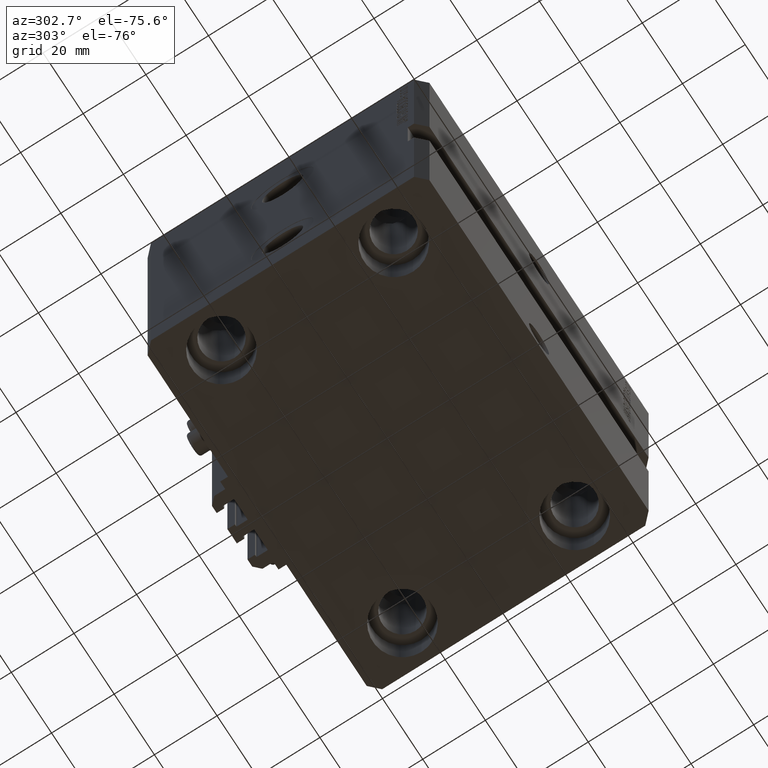
[diagram: clean part render]
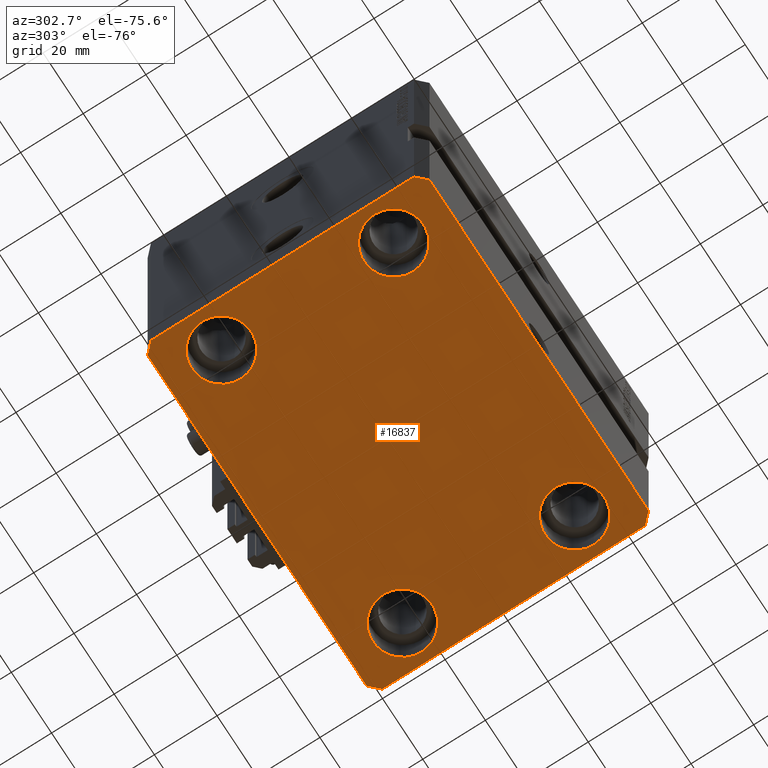
[diagram: same view with one face highlighted and labeled with its STEP entity id]
A machine part, auxiliary view. The second image highlights one B-rep face of the part: STEP entity #16837.
In plain terms, the highlighted planar face has unit normal (0, 0, 1).
Its self-contained STEP definition (entity closure, byte-faithful):
#279 = CARTESIAN_POINT ( 'NONE',  ( -35.50000000000000000, 27.50000000000000355, -105.0000000000000000 ) ) ;
#467 = DIRECTION ( 'NONE',  ( 1.000000000000000000, 0.000000000000000000, -0.000000000000000000 ) ) ;
#576 = CARTESIAN_POINT ( 'NONE',  ( 57.50000000000000711, -41.99999999999998579, -105.0000000000000000 ) ) ;
#726 = DIRECTION ( 'NONE',  ( 0.7071067811865483499, 0.7071067811865466846, 0.000000000000000000 ) ) ;
#1422 = DIRECTION ( 'NONE',  ( 1.000000000000000000, 0.000000000000000000, 0.000000000000000000 ) ) ;
#1718 = CIRCLE ( 'NONE', #31116, 9.500000000000001776 ) ;
#1976 = VECTOR ( 'NONE', #726, 1000.000000000000000 ) ;
#2135 = LINE ( 'NONE', #35731, #8910 ) ;
#2207 = DIRECTION ( 'NONE',  ( -0.000000000000000000, -0.000000000000000000, 1.000000000000000000 ) ) ;
#2256 = CARTESIAN_POINT ( 'NONE',  ( 45.00000000000000000, 27.50000000000001776, -105.0000000000000000 ) ) ;
#2912 = DIRECTION ( 'NONE',  ( -0.7071067811865376918, 0.7071067811865574537, 0.000000000000000000 ) ) ;
#3222 = EDGE_CURVE ( 'NONE', #12543, #41691, #9129, .T. ) ;
#3352 = CARTESIAN_POINT ( 'NONE',  ( 45.00000000000000000, 27.50000000000001776, -105.0000000000000000 ) ) ;
#3983 = CARTESIAN_POINT ( 'NONE',  ( -57.49999999999998579, 42.00000000000000711, -105.0000000000000000 ) ) ;
#4467 = DIRECTION ( 'NONE',  ( -2.478176394252581141E-16, -1.000000000000000000, 0.000000000000000000 ) ) ;
#4506 = LINE ( 'NONE', #46290, #31974 ) ;
#4608 = VERTEX_POINT ( 'NONE', #47887 ) ;
#5038 = VERTEX_POINT ( 'NONE', #30649 ) ;
#5050 = DIRECTION ( 'NONE',  ( -0.000000000000000000, -0.000000000000000000, 1.000000000000000000 ) ) ;
#5614 = DIRECTION ( 'NONE',  ( 6.443258625056715108E-15, 1.000000000000000000, 0.000000000000000000 ) ) ;
#5835 = VERTEX_POINT ( 'NONE', #17986 ) ;
#6090 = DIRECTION ( 'NONE',  ( -0.000000000000000000, -0.000000000000000000, 1.000000000000000000 ) ) ;
#8033 = LINE ( 'NONE', #29281, #13172 ) ;
#8334 = CARTESIAN_POINT ( 'NONE',  ( 54.50000000000058975, 45.00000000000002842, -105.0000000000000000 ) ) ;
#8769 = LINE ( 'NONE', #43355, #29355 ) ;
#8805 = ORIENTED_EDGE ( 'NONE', *, *, #42969, .F. ) ;
#8910 = VECTOR ( 'NONE', #5614, 1000.000000000000000 ) ;
#8913 = CARTESIAN_POINT ( 'NONE',  ( -35.50000000000000000, -27.49999999999999645, -105.0000000000000000 ) ) ;
#8950 = CIRCLE ( 'NONE', #20876, 9.500000000000001776 ) ;
#9129 = CIRCLE ( 'NONE', #21051, 9.500000000000001776 ) ;
#10014 = CARTESIAN_POINT ( 'NONE',  ( -54.50000000000000000, 27.50000000000000355, -105.0000000000000000 ) ) ;
#10202 = FACE_OUTER_BOUND ( 'NONE', #33993, .T. ) ;
#11840 = CARTESIAN_POINT ( 'NONE',  ( -57.49999999999998579, 42.00000000000000711, -105.0000000000000000 ) ) ;
#12201 = DIRECTION ( 'NONE',  ( 1.000000000000000000, 1.273191542001326317E-16, 0.000000000000000000 ) ) ;
#12543 = VERTEX_POINT ( 'NONE', #47386 ) ;
#12824 = EDGE_LOOP ( 'NONE', ( #37345, #42516 ) ) ;
#13172 = VECTOR ( 'NONE', #2912, 999.9999999999998863 ) ;
#13424 = PLANE ( 'NONE',  #38284 ) ;
#13769 = EDGE_LOOP ( 'NONE', ( #26224, #22367 ) ) ;
#13790 = LINE ( 'NONE', #35481, #13846 ) ;
#13846 = VECTOR ( 'NONE', #17038, 1000.000000000000114 ) ;
#14726 = ORIENTED_EDGE ( 'NONE', *, *, #24676, .F. ) ;
#14765 = DIRECTION ( 'NONE',  ( -0.000000000000000000, -0.000000000000000000, 1.000000000000000000 ) ) ;
#15369 = CARTESIAN_POINT ( 'NONE',  ( -45.00000000000000000, 27.50000000000000355, -105.0000000000000000 ) ) ;
#15591 = EDGE_CURVE ( 'NONE', #39990, #5835, #35706, .T. ) ;
#15919 = VECTOR ( 'NONE', #27231, 1000.000000000000000 ) ;
#16047 = EDGE_CURVE ( 'NONE', #22498, #4608, #22320, .T. ) ;
#16276 = EDGE_CURVE ( 'NONE', #46316, #26536, #1718, .T. ) ;
#16837 = ADVANCED_FACE ( 'NONE', ( #17653, #40070, #43796, #47528, #10202 ), #13424, .F. ) ;
#17006 = CARTESIAN_POINT ( 'NONE',  ( 54.50000000000000711, -44.99999999999998579, -105.0000000000000000 ) ) ;
#17036 = DIRECTION ( 'NONE',  ( 1.000000000000000000, 0.000000000000000000, 0.000000000000000000 ) ) ;
#17038 = DIRECTION ( 'NONE',  ( 0.7071067811865491270, -0.7071067811865459074, 0.000000000000000000 ) ) ;
#17064 = CARTESIAN_POINT ( 'NONE',  ( -45.00000000000000000, -27.49999999999999645, -105.0000000000000000 ) ) ;
#17412 = DIRECTION ( 'NONE',  ( -0.000000000000000000, -0.000000000000000000, 1.000000000000000000 ) ) ;
#17653 = FACE_BOUND ( 'NONE', #48306, .T. ) ;
#17880 = EDGE_CURVE ( 'NONE', #4608, #22498, #47806, .T. ) ;
#17984 = ORIENTED_EDGE ( 'NONE', *, *, #29509, .F. ) ;
#17986 = CARTESIAN_POINT ( 'NONE',  ( -54.49999999999999289, 45.00000000000000000, -105.0000000000000000 ) ) ;
#17998 = ORIENTED_EDGE ( 'NONE', *, *, #21934, .F. ) ;
#18509 = DIRECTION ( 'NONE',  ( 1.000000000000000000, 0.000000000000000000, 0.000000000000000000 ) ) ;
#19153 = EDGE_CURVE ( 'NONE', #44408, #36372, #8950, .T. ) ;
#20429 = CIRCLE ( 'NONE', #37910, 9.500000000000001776 ) ;
#20855 = EDGE_CURVE ( 'NONE', #27156, #40923, #2135, .T. ) ;
#20876 = AXIS2_PLACEMENT_3D ( 'NONE', #39138, #5050, #27931 ) ;
#20945 = DIRECTION ( 'NONE',  ( -0.7071067811865483499, -0.7071067811865466846, 0.000000000000000000 ) ) ;
#21051 = AXIS2_PLACEMENT_3D ( 'NONE', #2256, #17412, #36828 ) ;
#21630 = AXIS2_PLACEMENT_3D ( 'NONE', #3352, #44885, #18509 ) ;
#21842 = CIRCLE ( 'NONE', #27378, 9.500000000000001776 ) ;
#21934 = EDGE_CURVE ( 'NONE', #26495, #35009, #38073, .T. ) ;
#22320 = CIRCLE ( 'NONE', #42227, 9.500000000000001776 ) ;
#22367 = ORIENTED_EDGE ( 'NONE', *, *, #16276, .T. ) ;
#22498 = VERTEX_POINT ( 'NONE', #42840 ) ;
#23343 = LINE ( 'NONE', #34571, #1976 ) ;
#24676 = EDGE_CURVE ( 'NONE', #5835, #26495, #8769, .T. ) ;
#24739 = CARTESIAN_POINT ( 'NONE',  ( 45.00000000000000000, -27.49999999999999645, -105.0000000000000000 ) ) ;
#24939 = ORIENTED_EDGE ( 'NONE', *, *, #40026, .F. ) ;
#25353 = CARTESIAN_POINT ( 'NONE',  ( 0.000000000000000000, 0.000000000000000000, -105.0000000000000000 ) ) ;
#26224 = ORIENTED_EDGE ( 'NONE', *, *, #46596, .T. ) ;
#26330 = AXIS2_PLACEMENT_3D ( 'NONE', #29058, #2207, #32554 ) ;
#26495 = VERTEX_POINT ( 'NONE', #11840 ) ;
#26536 = VERTEX_POINT ( 'NONE', #10014 ) ;
#27156 = VERTEX_POINT ( 'NONE', #576 ) ;
#27214 = CIRCLE ( 'NONE', #21630, 9.500000000000001776 ) ;
#27231 = DIRECTION ( 'NONE',  ( -1.000000000000000000, -2.546383084002639322E-16, 0.000000000000000000 ) ) ;
#27378 = AXIS2_PLACEMENT_3D ( 'NONE', #17064, #28282, #1422 ) ;
#27870 = ORIENTED_EDGE ( 'NONE', *, *, #3222, .T. ) ;
#27931 = DIRECTION ( 'NONE',  ( 1.000000000000000000, 0.000000000000000000, 0.000000000000000000 ) ) ;
#28166 = ORIENTED_EDGE ( 'NONE', *, *, #40459, .T. ) ;
#28282 = DIRECTION ( 'NONE',  ( -0.000000000000000000, -0.000000000000000000, 1.000000000000000000 ) ) ;
#29058 = CARTESIAN_POINT ( 'NONE',  ( 45.00000000000000000, -27.49999999999999645, -105.0000000000000000 ) ) ;
#29281 = CARTESIAN_POINT ( 'NONE',  ( 57.50000000000055422, 41.99999999999997868, -105.0000000000000000 ) ) ;
#29355 = VECTOR ( 'NONE', #20945, 1000.000000000000000 ) ;
#29509 = EDGE_CURVE ( 'NONE', #5038, #40871, #4506, .T. ) ;
#29971 = DIRECTION ( 'NONE',  ( 1.000000000000000000, 0.000000000000000000, 0.000000000000000000 ) ) ;
#30147 = EDGE_CURVE ( 'NONE', #41691, #12543, #27214, .T. ) ;
#30649 = CARTESIAN_POINT ( 'NONE',  ( -54.50000000000000711, -45.00000000000000000, -105.0000000000000000 ) ) ;
#31116 = AXIS2_PLACEMENT_3D ( 'NONE', #48870, #14765, #29971 ) ;
#31705 = ORIENTED_EDGE ( 'NONE', *, *, #35798, .F. ) ;
#31974 = VECTOR ( 'NONE', #12201, 1000.000000000000000 ) ;
#32554 = DIRECTION ( 'NONE',  ( 1.000000000000000000, 0.000000000000000000, 0.000000000000000000 ) ) ;
#33993 = EDGE_LOOP ( 'NONE', ( #37894, #8805, #36095, #24939, #17984, #31705, #17998, #14726 ) ) ;
#34571 = CARTESIAN_POINT ( 'NONE',  ( 54.50000000000000711, -44.99999999999998579, -105.0000000000000000 ) ) ;
#34796 = DIRECTION ( 'NONE',  ( 1.000000000000000000, 0.000000000000000000, 0.000000000000000000 ) ) ;
#35009 = VERTEX_POINT ( 'NONE', #35915 ) ;
#35481 = CARTESIAN_POINT ( 'NONE',  ( -57.50000000000000711, -42.00000000000000711, -105.0000000000000000 ) ) ;
#35706 = LINE ( 'NONE', #8334, #15919 ) ;
#35731 = CARTESIAN_POINT ( 'NONE',  ( 57.50000000000000711, -41.99999999999998579, -105.0000000000000000 ) ) ;
#35798 = EDGE_CURVE ( 'NONE', #35009, #5038, #13790, .T. ) ;
#35915 = CARTESIAN_POINT ( 'NONE',  ( -57.50000000000000711, -42.00000000000000711, -105.0000000000000000 ) ) ;
#36095 = ORIENTED_EDGE ( 'NONE', *, *, #20855, .F. ) ;
#36372 = VERTEX_POINT ( 'NONE', #8913 ) ;
#36828 = DIRECTION ( 'NONE',  ( 1.000000000000000000, 0.000000000000000000, 0.000000000000000000 ) ) ;
#37345 = ORIENTED_EDGE ( 'NONE', *, *, #16047, .T. ) ;
#37894 = ORIENTED_EDGE ( 'NONE', *, *, #15591, .F. ) ;
#37910 = AXIS2_PLACEMENT_3D ( 'NONE', #15369, #39024, #34796 ) ;
#38073 = LINE ( 'NONE', #3983, #40447 ) ;
#38284 = AXIS2_PLACEMENT_3D ( 'NONE', #25353, #42020, #467 ) ;
#38321 = CARTESIAN_POINT ( 'NONE',  ( 54.50000000000000000, 27.50000000000001776, -105.0000000000000000 ) ) ;
#39010 = CARTESIAN_POINT ( 'NONE',  ( -54.50000000000000000, -27.49999999999999645, -105.0000000000000000 ) ) ;
#39024 = DIRECTION ( 'NONE',  ( -0.000000000000000000, -0.000000000000000000, 1.000000000000000000 ) ) ;
#39138 = CARTESIAN_POINT ( 'NONE',  ( -45.00000000000000000, -27.49999999999999645, -105.0000000000000000 ) ) ;
#39990 = VERTEX_POINT ( 'NONE', #40817 ) ;
#40026 = EDGE_CURVE ( 'NONE', #40871, #27156, #23343, .T. ) ;
#40070 = FACE_BOUND ( 'NONE', #12824, .T. ) ;
#40447 = VECTOR ( 'NONE', #4467, 1000.000000000000000 ) ;
#40459 = EDGE_CURVE ( 'NONE', #36372, #44408, #21842, .T. ) ;
#40817 = CARTESIAN_POINT ( 'NONE',  ( 54.50000000000058975, 45.00000000000002842, -105.0000000000000000 ) ) ;
#40871 = VERTEX_POINT ( 'NONE', #17006 ) ;
#40923 = VERTEX_POINT ( 'NONE', #43884 ) ;
#41691 = VERTEX_POINT ( 'NONE', #38321 ) ;
#42020 = DIRECTION ( 'NONE',  ( 0.000000000000000000, 0.000000000000000000, 1.000000000000000000 ) ) ;
#42227 = AXIS2_PLACEMENT_3D ( 'NONE', #24739, #6090, #17036 ) ;
#42516 = ORIENTED_EDGE ( 'NONE', *, *, #17880, .T. ) ;
#42840 = CARTESIAN_POINT ( 'NONE',  ( 35.50000000000000000, -27.49999999999999645, -105.0000000000000000 ) ) ;
#42969 = EDGE_CURVE ( 'NONE', #40923, #39990, #8033, .T. ) ;
#43355 = CARTESIAN_POINT ( 'NONE',  ( -54.49999999999999289, 45.00000000000000000, -105.0000000000000000 ) ) ;
#43796 = FACE_BOUND ( 'NONE', #45791, .T. ) ;
#43884 = CARTESIAN_POINT ( 'NONE',  ( 57.50000000000055422, 41.99999999999997868, -105.0000000000000000 ) ) ;
#44073 = ORIENTED_EDGE ( 'NONE', *, *, #30147, .T. ) ;
#44408 = VERTEX_POINT ( 'NONE', #39010 ) ;
#44885 = DIRECTION ( 'NONE',  ( -0.000000000000000000, -0.000000000000000000, 1.000000000000000000 ) ) ;
#45791 = EDGE_LOOP ( 'NONE', ( #27870, #44073 ) ) ;
#46290 = CARTESIAN_POINT ( 'NONE',  ( -54.50000000000000711, -45.00000000000000000, -105.0000000000000000 ) ) ;
#46316 = VERTEX_POINT ( 'NONE', #279 ) ;
#46596 = EDGE_CURVE ( 'NONE', #26536, #46316, #20429, .T. ) ;
#47386 = CARTESIAN_POINT ( 'NONE',  ( 35.50000000000000000, 27.50000000000001776, -105.0000000000000000 ) ) ;
#47517 = ORIENTED_EDGE ( 'NONE', *, *, #19153, .T. ) ;
#47528 = FACE_BOUND ( 'NONE', #13769, .T. ) ;
#47806 = CIRCLE ( 'NONE', #26330, 9.500000000000001776 ) ;
#47887 = CARTESIAN_POINT ( 'NONE',  ( 54.50000000000000000, -27.49999999999999645, -105.0000000000000000 ) ) ;
#48306 = EDGE_LOOP ( 'NONE', ( #47517, #28166 ) ) ;
#48870 = CARTESIAN_POINT ( 'NONE',  ( -45.00000000000000000, 27.50000000000000355, -105.0000000000000000 ) ) ;